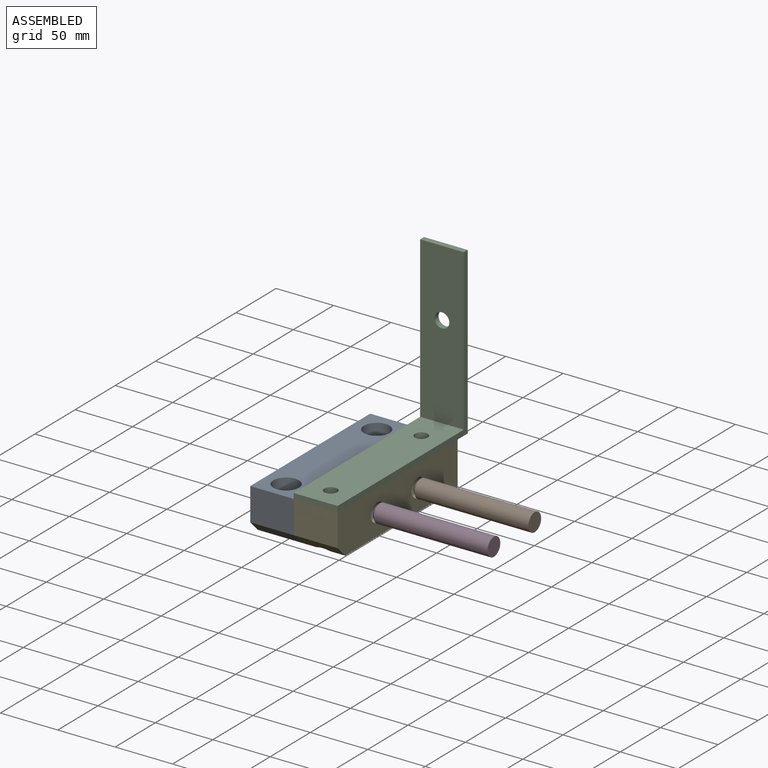
[diagram: assembled view]
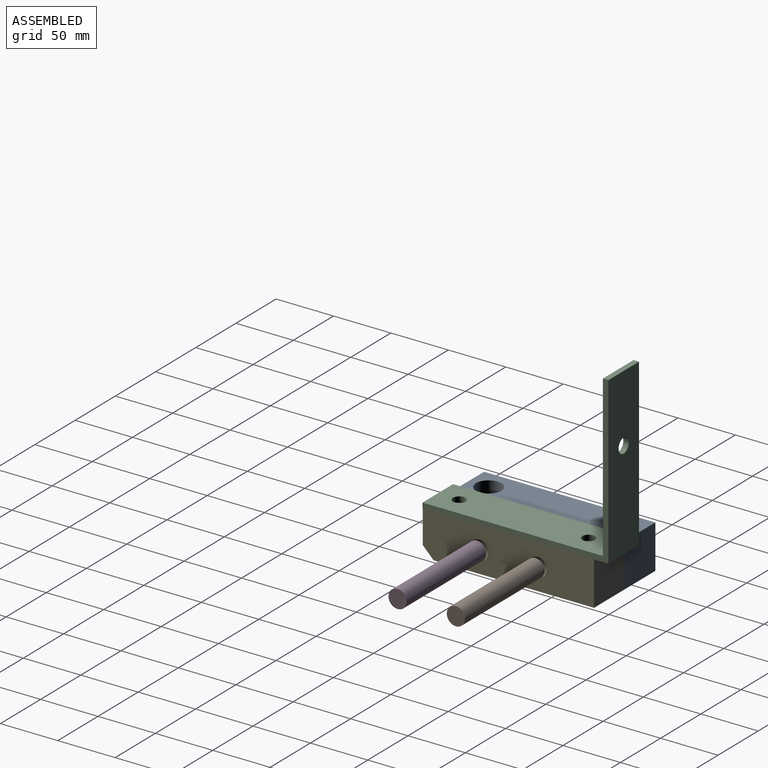
[diagram: assembled view, second angle]
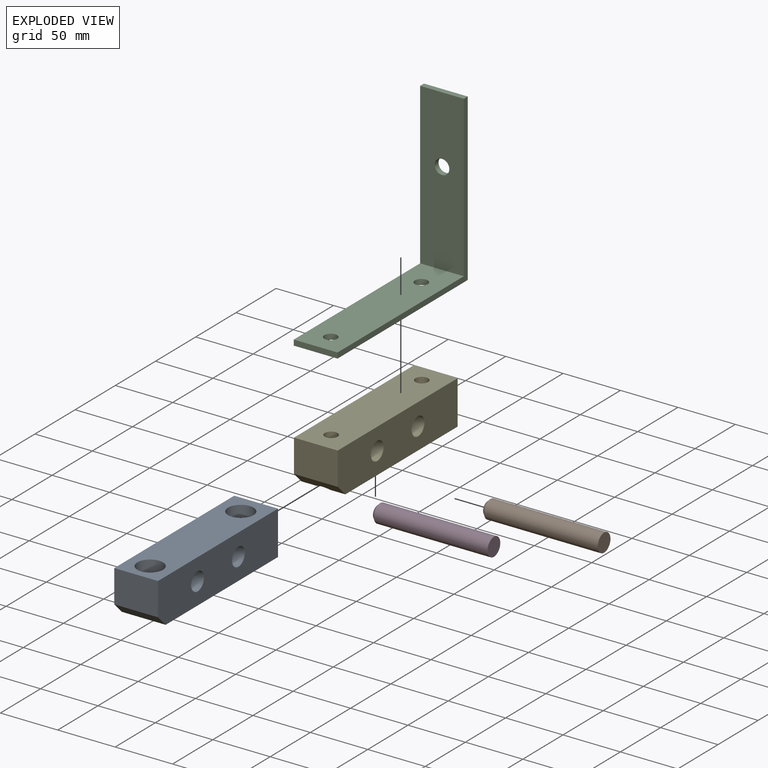
[diagram: exploded view]
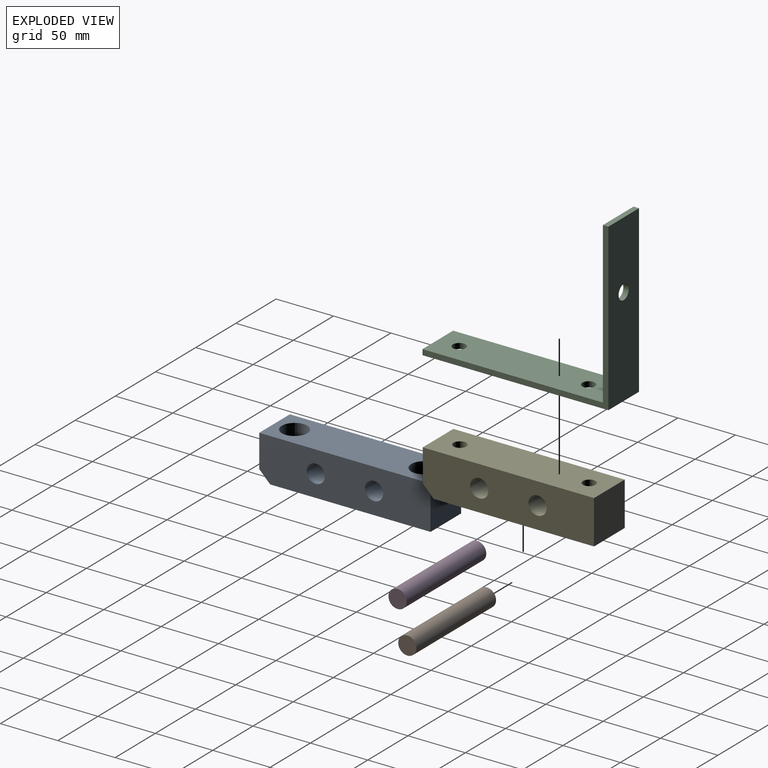
[diagram: exploded view, second angle]
ASSEMBLY  parts=5 mates=4
PART A: 15 faces, bbox 38.1x149.2x38.1 mm
  f0: cylinder r=5.56mm len=25.4mm, axis (0,0,1), area 887.8mm2, adj f5,f12
  f1: cylinder r=5.56mm len=25.4mm, axis (0,0,1), area 887.8mm2, adj f5,f10
  f2: plane 38.1x28.58mm, normal (0,-1,0), area 1088.7mm2, adj f3,f6,f7,f8
  f3: plane 149.23x38.1mm, normal (0,0,1), area 4909.6mm2, adj f2,f4,f6,f7,f9,f11
  f4: plane 38.1x38.1mm, normal (0,1,0), area 1451.6mm2, adj f3,f5,f6,f7
  f5: plane 139.7x38.1mm, normal (0,0,-1), area 5128.2mm2, adj f0,f1,f4,f6,f7,f8
  f6: plane 149.23x38.1mm, normal (-1,0,0), area 5244.2mm2, adj f2,f3,f4,f5,f8,f13,f14
  f7: plane 149.23x38.1mm, normal (1,0,0), area 5244.2mm2, adj f2,f3,f4,f5,f8,f13,f14
  f8: plane 38.1x9.53mm, normal (0,-0.71,-0.71), area 513.2mm2, adj f2,f5,f6,f7
  f9: cylinder r=11.11mm len=22.23mm, axis (0,0,1), area 886.7mm2, adj f3,f10
  f10: plane 22.23x22.23mm, normal (0,0,1), area 290.7mm2, adj f1,f9
  f11: cylinder r=11.11mm len=22.23mm, axis (0,0,1), area 886.7mm2, adj f3,f12
  f12: plane 22.23x22.23mm, normal (0,0,1), area 290.7mm2, adj f0,f11
  f13: cylinder r=7.94mm len=38.1mm, axis (-1,0,0), area 1900.2mm2, adj f6,f7
  f14: cylinder r=7.94mm len=38.1mm, axis (-1,0,0), area 1900.2mm2, adj f6,f7
PART B: 4 faces, bbox 101.6x15.8x15.8 mm
  f0: cylinder r=7.92mm len=99.06mm, axis (-1,0,0), area 4932.5mm2, adj f1,f3
  f1: plane 15.85x15.85mm, normal (1,0,0), area 197.3mm2, adj f0
  f2: plane 10.77x10.77mm, normal (-1,0,0), area 91.1mm2, adj f3
  f3: cone r=7.92mm half-angle=45deg, axis (1,0,0), area 150.2mm2, adj f0,f2
PART C: 11 faces, bbox 38.1x161.9x144.5 mm
  f0: plane 157.15x38.1mm, normal (0,0,1), area 5793mm2, adj f2,f3,f4,f6,f7,f8
  f1: plane 161.93x38.1mm, normal (0,0,-1), area 5974.9mm2, adj f2,f3,f4,f5,f6,f7
  f2: plane 161.93x144.48mm, normal (1,0,0), area 1440.1mm2, adj f0,f1,f4,f5,f8,f9
  f3: plane 161.93x144.48mm, normal (-1,0,0), area 1440.1mm2, adj f0,f1,f4,f5,f8,f9
  f4: plane 38.1x4.78mm, normal (0,-1,0), area 181.9mm2, adj f0,f1,f2,f3
  f5: plane 144.48x38.1mm, normal (0,1,0), area 5377.8mm2, adj f1,f2,f3,f9,f10
  f6: cylinder r=5.56mm len=11.13mm, axis (0,0,1), area 166.9mm2, adj f0,f1
  f7: cylinder r=5.56mm len=11.13mm, axis (0,0,1), area 166.9mm2, adj f0,f1
  f8: plane 139.71x38.11mm, normal (0,-1,0), area 5196.3mm2, adj f0,f2,f3,f9,f10
  f9: plane 38.1x4.77mm, normal (0,0,1), area 181.9mm2, adj f2,f3,f5,f8
  f10: cylinder r=6.35mm len=12.7mm, axis (0,1,0), area 190.5mm2, adj f5,f8
PART D: same geometry as B
PART E: 15 faces, bbox 38.1x149.2x38.1 mm
  f0: cylinder r=5.56mm len=25.4mm, axis (0,0,1), area 886.7mm2, adj f5,f11
  f1: plane 139.7x38.1mm, normal (0,0,-1), area 4559mm2, adj f3,f4,f7,f8,f10,f12
  f2: cylinder r=5.56mm len=25.4mm, axis (0,0,1), area 886.7mm2, adj f5,f9
  f3: plane 149.23x38.1mm, normal (-1,0,0), area 5244.2mm2, adj f1,f5,f6,f7,f8,f13,f14
  f4: plane 149.23x38.1mm, normal (1,0,0), area 5244.2mm2, adj f1,f5,f6,f7,f8,f13,f14
  f5: plane 149.23x38.1mm, normal (0,0,1), area 5491.5mm2, adj f0,f2,f3,f4,f6,f7
  f6: plane 38.1x28.58mm, normal (0,-1,0), area 1088.7mm2, adj f3,f4,f5,f8
  f7: plane 38.1x38.1mm, normal (0,1,0), area 1451.6mm2, adj f1,f3,f4,f5
  f8: plane 38.1x9.53mm, normal (0,-0.71,-0.71), area 495.8mm2, adj f1,f3,f4,f6,f10
  f9: plane 22.23x22.23mm, normal (0,0,-1), area 291mm2, adj f2,f10
  f10: cylinder r=11.11mm len=22.23mm, axis (0,0,-1), area 874.1mm2, adj f1,f8,f9
  f11: plane 22.23x22.23mm, normal (0,0,-1), area 291mm2, adj f0,f12
  f12: cylinder r=11.11mm len=22.23mm, axis (0,0,-1), area 886.7mm2, adj f1,f11
  f13: cylinder r=7.94mm len=38.1mm, axis (-1,0,0), area 1900.2mm2, adj f3,f4
  f14: cylinder r=7.94mm len=38.1mm, axis (-1,0,0), area 1900.2mm2, adj f3,f4
PLACE A t=(116.81,190.49,-1.31)mm
PLACE B rot(axis=(1,0,0),0deg) t=(154.91,197.85,-52.79)mm
PLACE C t=(116.81,190.27,-1.38)mm
PLACE D rot(axis=(1,0,0),0deg) t=(154.91,147.06,-52.79)mm
PLACE E t=(116.81,190.49,-1.31)mm
MATE slider A.f2 <-> E.f6  axis (0,-1,0) through (97.76,41.27,22.5)mm
MATE fastened C.f1 <-> E.f5  axis (0,0,-1) through (135.86,122.2,36.79)mm
MATE slider B.f0 <-> E.f13  axis (-1,0,0) through (154.91,141.28,17.74)mm
MATE slider D.f0 <-> E.f14  axis (-1,0,0) through (154.91,90.49,17.74)mm
